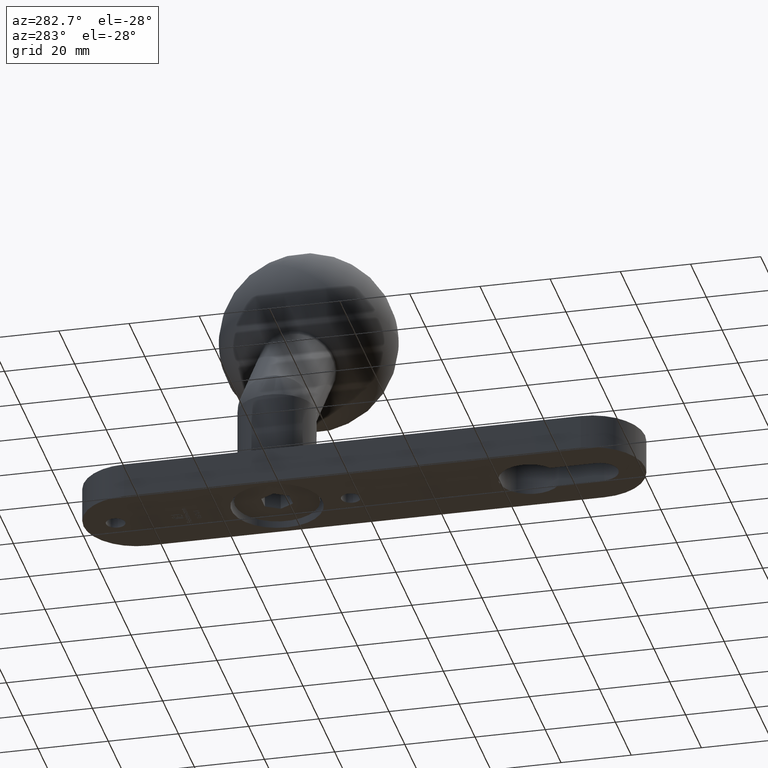
[diagram: clean part render]
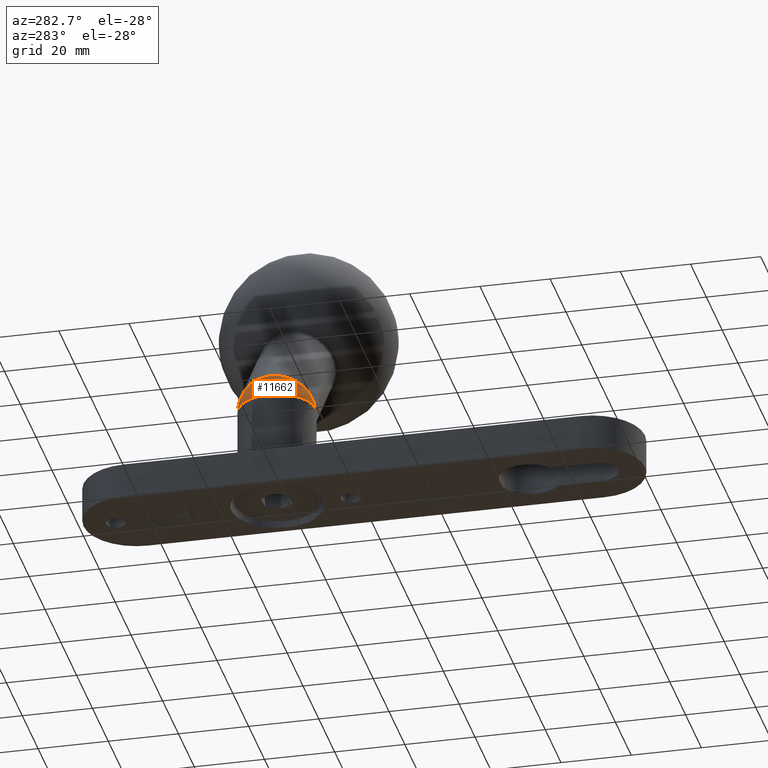
[diagram: same view with one face highlighted and labeled with its STEP entity id]
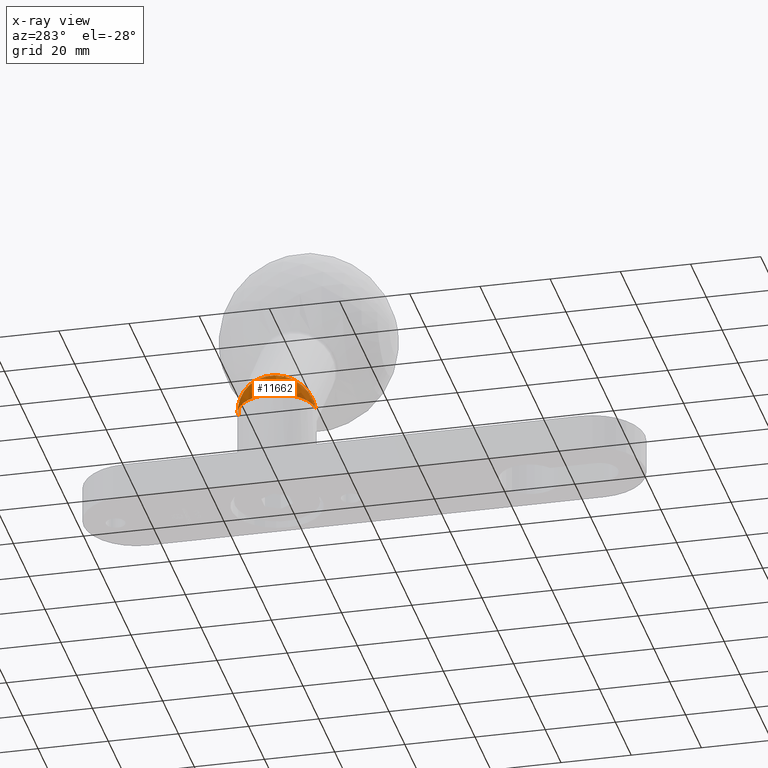
[diagram: x-ray of the same camera — body ghosted, the highlighted face saturated]
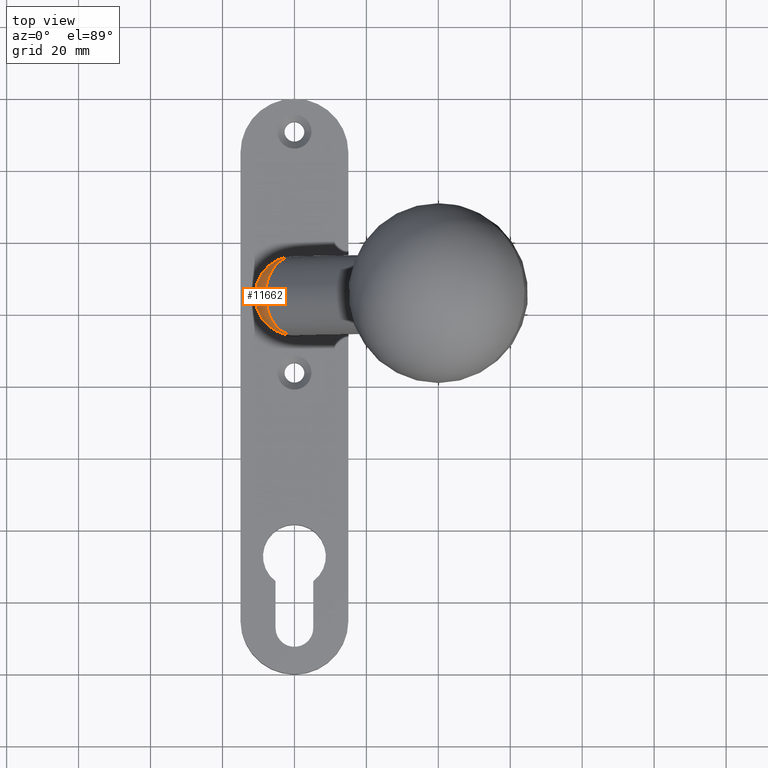
[diagram: same view with one face highlighted and labeled with its STEP entity id]
A machine part, auxiliary view. The second image highlights one B-rep face of the part: STEP entity #11662.
The next image is the same camera in x-ray: the body ghosted, the highlighted face saturated — about 0% of this face is hidden behind the body in this view.
A second angle (top view) of the same face is appended — the face is thin or edge-on in the first view.
In plain terms, the highlighted spherical surface has radius 11 mm.
Its self-contained STEP definition (entity closure, byte-faithful):
#180 = EDGE_LOOP ( 'NONE', ( #11827, #5523 ) ) ;
#578 = CARTESIAN_POINT ( 'NONE',  ( 3.035766082959414782E-15, 0.000000000000000000, 19.35125564557401034 ) ) ;
#933 = DIRECTION ( 'NONE',  ( 0.000000000000000000, 1.000000000000000000, 0.000000000000000000 ) ) ;
#1206 = CIRCLE ( 'NONE', #6340, 11.00000000000000178 ) ;
#2286 = DIRECTION ( 'NONE',  ( 0.6840940520712256445, 0.000000000000000000, 0.7293938085292274165 ) ) ;
#2404 = EDGE_CURVE ( 'NONE', #10893, #3678, #2567, .T. ) ;
#2567 = CIRCLE ( 'NONE', #4172, 11.00000000000000178 ) ;
#3101 = AXIS2_PLACEMENT_3D ( 'NONE', #12675, #933, #6760 ) ;
#3678 = VERTEX_POINT ( 'NONE', #4276 ) ;
#4172 = AXIS2_PLACEMENT_3D ( 'NONE', #5342, #2286, #4221 ) ;
#4221 = DIRECTION ( 'NONE',  ( 0.7293938085292274165, 0.000000000000000000, -0.6840940520712256445 ) ) ;
#4276 = CARTESIAN_POINT ( 'NONE',  ( 1.078506148106765845E-14, -11.00000000000000178, 19.35125564557399258 ) ) ;
#5342 = CARTESIAN_POINT ( 'NONE',  ( 1.233384892898910870E-14, 0.000000000000000000, 19.35125564557400679 ) ) ;
#5523 = ORIENTED_EDGE ( 'NONE', *, *, #8589, .F. ) ;
#6340 = AXIS2_PLACEMENT_3D ( 'NONE', #578, #7446, #7701 ) ;
#6760 = DIRECTION ( 'NONE',  ( 1.000000000000000000, 0.000000000000000000, 0.000000000000000000 ) ) ;
#7286 = SPHERICAL_SURFACE ( 'NONE', #3101, 11.00000000000000000 ) ;
#7386 = CARTESIAN_POINT ( 'NONE',  ( 1.103679378501649205E-14, 11.00000000000000178, 19.35125564557399258 ) ) ;
#7446 = DIRECTION ( 'NONE',  ( -1.568769561293947322E-16, -0.000000000000000000, -1.000000000000000000 ) ) ;
#7701 = DIRECTION ( 'NONE',  ( -1.000000000000000000, 0.000000000000000000, 0.000000000000000000 ) ) ;
#8589 = EDGE_CURVE ( 'NONE', #3678, #10893, #1206, .T. ) ;
#10893 = VERTEX_POINT ( 'NONE', #7386 ) ;
#11662 = ADVANCED_FACE ( 'NONE', ( #12545 ), #7286, .T. ) ;
#11827 = ORIENTED_EDGE ( 'NONE', *, *, #2404, .F. ) ;
#12545 = FACE_OUTER_BOUND ( 'NONE', #180, .T. ) ;
#12675 = CARTESIAN_POINT ( 'NONE',  ( 8.107359588924276274E-15, 0.000000000000000000, 19.35125564557401034 ) ) ;